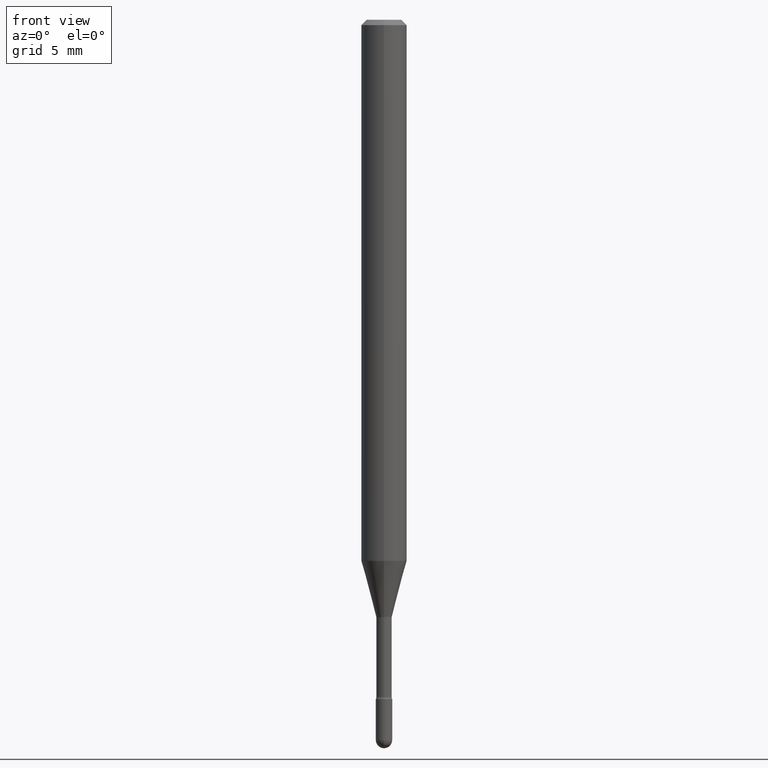
[diagram: clean part render]
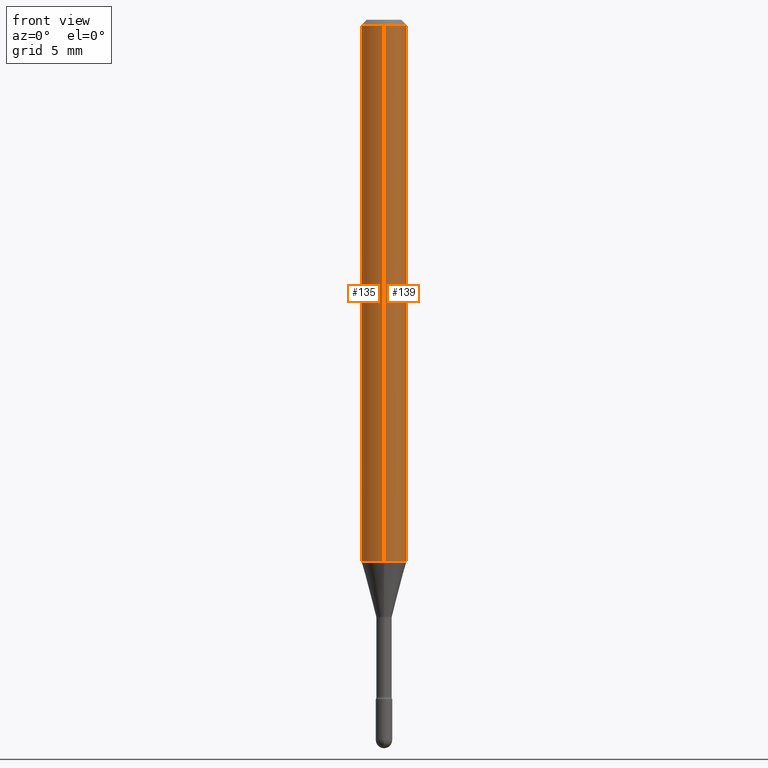
[diagram: same view with one multi-face feature highlighted, each face labeled with its STEP entity id]
A machine part, front view. The highlighted faces form ONE feature: a constant-radius fillet chain: 2 tangent blend faces with common blend radius 1.5875 mm. The faces share edges in the B-rep.
Their STEP definitions:
[1] entity #135 (Cylinder):
#6 = DIRECTION ( 'NONE',  ( -2.445440132867117626E-29, 3.491522400666532586E-15, 1.000000000000000000 ) ) ;
#24 = DIRECTION ( 'NONE',  ( -6.982962677686265922E-15, -1.000000000000000000, 3.491522400666532980E-15 ) ) ;
#47 = EDGE_CURVE ( 'NONE', #216, #114, #304, .T. ) ;
#97 = CARTESIAN_POINT ( 'NONE',  ( -4.364351673553912750E-16, -0.06250000000000005551, -0.01499999999999986587 ) ) ;
#114 = VERTEX_POINT ( 'NONE', #97 ) ;
#118 = LINE ( 'NONE', #207, #458 ) ;
#121 = EDGE_CURVE ( 'NONE', #244, #216, #209, .T. ) ;
#122 = CARTESIAN_POINT ( 'NONE',  ( -4.364351673553553818E-16, -0.06250000000000520417, -1.485679699107026686 ) ) ;
#124 = DIRECTION ( 'NONE',  ( -2.445440132867117346E-29, 3.491522400666532980E-15, 1.000000000000000000 ) ) ;
#135 = ADVANCED_FACE ( 'NONE', ( #384 ), #336, .T. ) ;
#155 = DIRECTION ( 'NONE',  ( -2.445440132867117626E-29, 3.491522400666532586E-15, 1.000000000000000000 ) ) ;
#181 = CARTESIAN_POINT ( 'NONE',  ( 3.668160199300696128E-31, -5.237283600999828510E-17, -0.01500000000000008271 ) ) ;
#193 = EDGE_CURVE ( 'NONE', #244, #565, #118, .T. ) ;
#202 = CARTESIAN_POINT ( 'NONE',  ( 4.440892098500991996E-16, 0.06249999999999995143, -0.01500000000000030129 ) ) ;
#207 = CARTESIAN_POINT ( 'NONE',  ( 4.440892098500625669E-16, 0.06250000000000000000, 2.598532488495877520E-16 ) ) ;
#209 = CIRCLE ( 'NONE', #476, 0.06250000000000000000 ) ;
#216 = VERTEX_POINT ( 'NONE', #122 ) ;
#226 = CIRCLE ( 'NONE', #276, 0.06250000000000000000 ) ;
#233 = AXIS2_PLACEMENT_3D ( 'NONE', #499, #124, #24 ) ;
#244 = VERTEX_POINT ( 'NONE', #377 ) ;
#275 = DIRECTION ( 'NONE',  ( -2.445440132867117346E-29, 3.491522400666532980E-15, 1.000000000000000000 ) ) ;
#276 = AXIS2_PLACEMENT_3D ( 'NONE', #181, #530, #359 ) ;
#290 = ORIENTED_EDGE ( 'NONE', *, *, #312, .F. ) ;
#304 = LINE ( 'NONE', #440, #536 ) ;
#312 = EDGE_CURVE ( 'NONE', #565, #114, #226, .T. ) ;
#336 = CYLINDRICAL_SURFACE ( 'NONE', #233, 0.06250000000000000000 ) ;
#359 = DIRECTION ( 'NONE',  ( -6.982962677686265922E-15, -1.000000000000000000, 3.483106191921935554E-15 ) ) ;
#377 = CARTESIAN_POINT ( 'NONE',  ( 4.440892098500987066E-16, 0.06249999999999478889, -1.485679699107027352 ) ) ;
#384 = FACE_OUTER_BOUND ( 'NONE', #542, .T. ) ;
#402 = ORIENTED_EDGE ( 'NONE', *, *, #47, .T. ) ;
#440 = CARTESIAN_POINT ( 'NONE',  ( -4.364351673553916201E-16, -0.06250000000000000000, 6.962935489329043745E-16 ) ) ;
#446 = DIRECTION ( 'NONE',  ( -6.982962677686265922E-15, -1.000000000000000000, 4.370956789862821150E-15 ) ) ;
#458 = VECTOR ( 'NONE', #155, 39.37007874015748143 ) ;
#462 = ORIENTED_EDGE ( 'NONE', *, *, #121, .T. ) ;
#473 = ORIENTED_EDGE ( 'NONE', *, *, #193, .F. ) ;
#476 = AXIS2_PLACEMENT_3D ( 'NONE', #535, #275, #446 ) ;
#499 = CARTESIAN_POINT ( 'NONE',  ( -1.169113584055446105E-44, 1.669184350826100908E-30, 4.780733988912460139E-16 ) ) ;
#530 = DIRECTION ( 'NONE',  ( -2.445440132867117346E-29, 3.491522400666532980E-15, 1.000000000000000000 ) ) ;
#535 = CARTESIAN_POINT ( 'NONE',  ( 3.633140760782267063E-29, -5.187283949647700469E-15, -1.485679699107027130 ) ) ;
#536 = VECTOR ( 'NONE', #6, 39.37007874015748143 ) ;
#542 = EDGE_LOOP ( 'NONE', ( #473, #462, #402, #290 ) ) ;
#565 = VERTEX_POINT ( 'NONE', #202 ) ;
[2] entity #139 (Cylinder):
#6 = DIRECTION ( 'NONE',  ( -2.445440132867117626E-29, 3.491522400666532586E-15, 1.000000000000000000 ) ) ;
#14 = DIRECTION ( 'NONE',  ( -6.982962677686265922E-15, -1.000000000000000000, 3.483106191921935554E-15 ) ) ;
#25 = ORIENTED_EDGE ( 'NONE', *, *, #69, .F. ) ;
#47 = EDGE_CURVE ( 'NONE', #216, #114, #304, .T. ) ;
#54 = DIRECTION ( 'NONE',  ( -2.445440132867117346E-29, 3.491522400666532980E-15, 1.000000000000000000 ) ) ;
#55 = AXIS2_PLACEMENT_3D ( 'NONE', #60, #104, #408 ) ;
#60 = CARTESIAN_POINT ( 'NONE',  ( 3.633140760782267063E-29, -5.187283949647700469E-15, -1.485679699107027130 ) ) ;
#69 = EDGE_CURVE ( 'NONE', #114, #565, #471, .T. ) ;
#77 = DIRECTION ( 'NONE',  ( -6.982962677686265922E-15, -1.000000000000000000, 3.491522400666532980E-15 ) ) ;
#91 = AXIS2_PLACEMENT_3D ( 'NONE', #93, #54, #14 ) ;
#93 = CARTESIAN_POINT ( 'NONE',  ( 3.668160199300696128E-31, -5.237283600999828510E-17, -0.01500000000000008271 ) ) ;
#97 = CARTESIAN_POINT ( 'NONE',  ( -4.364351673553912750E-16, -0.06250000000000005551, -0.01499999999999986587 ) ) ;
#101 = EDGE_CURVE ( 'NONE', #216, #244, #314, .T. ) ;
#104 = DIRECTION ( 'NONE',  ( -2.445440132867117346E-29, 3.491522400666532980E-15, 1.000000000000000000 ) ) ;
#114 = VERTEX_POINT ( 'NONE', #97 ) ;
#118 = LINE ( 'NONE', #207, #458 ) ;
#122 = CARTESIAN_POINT ( 'NONE',  ( -4.364351673553553818E-16, -0.06250000000000520417, -1.485679699107026686 ) ) ;
#139 = ADVANCED_FACE ( 'NONE', ( #247 ), #166, .T. ) ;
#146 = EDGE_LOOP ( 'NONE', ( #231, #153, #25, #415 ) ) ;
#153 = ORIENTED_EDGE ( 'NONE', *, *, #193, .T. ) ;
#155 = DIRECTION ( 'NONE',  ( -2.445440132867117626E-29, 3.491522400666532586E-15, 1.000000000000000000 ) ) ;
#166 = CYLINDRICAL_SURFACE ( 'NONE', #176, 0.06250000000000000000 ) ;
#176 = AXIS2_PLACEMENT_3D ( 'NONE', #508, #548, #77 ) ;
#193 = EDGE_CURVE ( 'NONE', #244, #565, #118, .T. ) ;
#202 = CARTESIAN_POINT ( 'NONE',  ( 4.440892098500991996E-16, 0.06249999999999995143, -0.01500000000000030129 ) ) ;
#207 = CARTESIAN_POINT ( 'NONE',  ( 4.440892098500625669E-16, 0.06250000000000000000, 2.598532488495877520E-16 ) ) ;
#216 = VERTEX_POINT ( 'NONE', #122 ) ;
#231 = ORIENTED_EDGE ( 'NONE', *, *, #101, .T. ) ;
#244 = VERTEX_POINT ( 'NONE', #377 ) ;
#247 = FACE_OUTER_BOUND ( 'NONE', #146, .T. ) ;
#304 = LINE ( 'NONE', #440, #536 ) ;
#314 = CIRCLE ( 'NONE', #55, 0.06250000000000000000 ) ;
#377 = CARTESIAN_POINT ( 'NONE',  ( 4.440892098500987066E-16, 0.06249999999999478889, -1.485679699107027352 ) ) ;
#408 = DIRECTION ( 'NONE',  ( -6.982962677686265922E-15, -1.000000000000000000, 4.370956789862821150E-15 ) ) ;
#415 = ORIENTED_EDGE ( 'NONE', *, *, #47, .F. ) ;
#440 = CARTESIAN_POINT ( 'NONE',  ( -4.364351673553916201E-16, -0.06250000000000000000, 6.962935489329043745E-16 ) ) ;
#458 = VECTOR ( 'NONE', #155, 39.37007874015748143 ) ;
#471 = CIRCLE ( 'NONE', #91, 0.06250000000000000000 ) ;
#508 = CARTESIAN_POINT ( 'NONE',  ( -1.169113584055446105E-44, 1.669184350826100908E-30, 4.780733988912460139E-16 ) ) ;
#536 = VECTOR ( 'NONE', #6, 39.37007874015748143 ) ;
#548 = DIRECTION ( 'NONE',  ( -2.445440132867117346E-29, 3.491522400666532980E-15, 1.000000000000000000 ) ) ;
#565 = VERTEX_POINT ( 'NONE', #202 ) ;